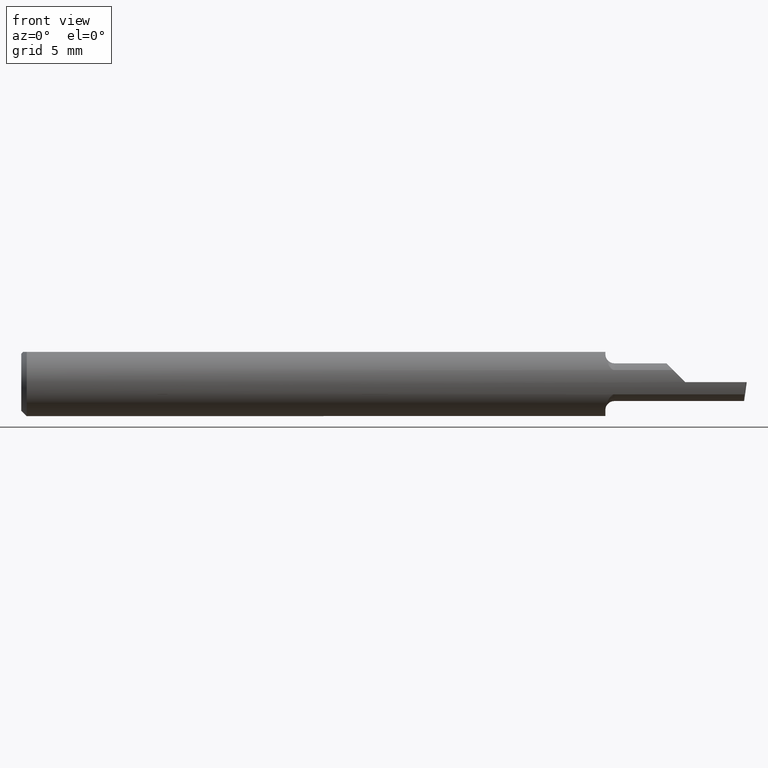
[diagram: clean part render]
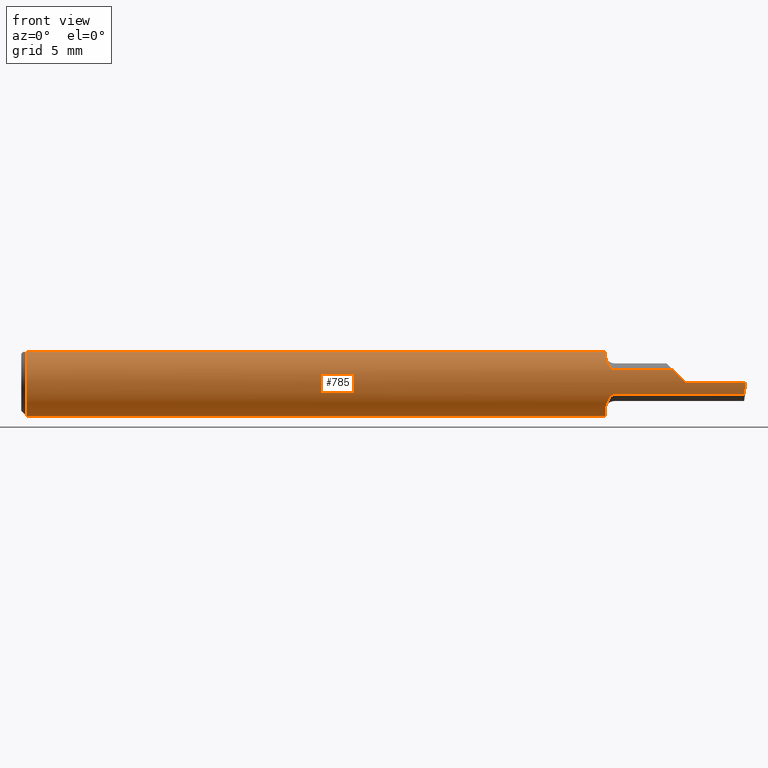
[diagram: same view with one face highlighted and labeled with its STEP entity id]
A machine part, front view. The second image highlights one B-rep face of the part: STEP entity #785.
In plain terms, the highlighted cylindrical surface (edge-blend (fillet) strip) has radius 2.3774 mm, axis along (-1, -0, -0).
Its self-contained STEP definition (entity closure, byte-faithful):
#1 = CARTESIAN_POINT ( 'NONE',  ( 1.829999999999999849, -0.09359807690332104524, 0.0006000000000000564344 ) ) ;
#2 = EDGE_CURVE ( 'NONE', #975, #944, #59, .T. ) ;
#7 = CARTESIAN_POINT ( 'NONE',  ( 1.996886856354181505, -0.09360000000000003040, 0.000000000000000000 ) ) ;
#27 = CARTESIAN_POINT ( 'NONE',  ( 1.635000000000000009, -0.08742352941176473324, 0.03343780054355112441 ) ) ;
#34 =( BOUNDED_CURVE ( )  B_SPLINE_CURVE ( 3, ( #1, #440, #1323, #551 ),
 .UNSPECIFIED., .F., .T. ) 
 B_SPLINE_CURVE_WITH_KNOTS ( ( 4, 4 ),
 ( 4.718799280696812204, 5.077701767404802169 ),
 .UNSPECIFIED. ) 
 CURVE ( )  GEOMETRIC_REPRESENTATION_ITEM ( )  RATIONAL_B_SPLINE_CURVE ( ( 1.000000000000000000, 0.9892945255447470609, 0.9892945255447470609, 1.000000000000000000 ) ) 
 REPRESENTATION_ITEM ( '' )  );
#50 = EDGE_CURVE ( 'NONE', #135, #1141, #1006, .T. ) ;
#53 = CARTESIAN_POINT ( 'NONE',  ( 1.632236034269168634, -0.08742352941176474712, 0.03343780054355113135 ) ) ;
#56 = ORIENTED_EDGE ( 'NONE', *, *, #50, .T. ) ;
#59 = LINE ( 'NONE', #507, #464 ) ;
#61 = CARTESIAN_POINT ( 'NONE',  ( 1.610000000000000098, -0.05354747899159666841, 0.07676996478861061735 ) ) ;
#68 = LINE ( 'NONE', #517, #499 ) ;
#70 = CARTESIAN_POINT ( 'NONE',  ( 1.829999999999999849, -0.09359807690332104524, 0.0006000000000000564344 ) ) ;
#85 = CARTESIAN_POINT ( 'NONE',  ( 0.01500000000000024925, 0.000000000000000000, 0.000000000000000000 ) ) ;
#90 = CARTESIAN_POINT ( 'NONE',  ( 1.619429831793493202, -0.08157196373575877069, 0.04612478859720783864 ) ) ;
#113 = DIRECTION ( 'NONE',  ( 1.000000000000000000, -0.000000000000000000, -0.000000000000000000 ) ) ;
#117 = VECTOR ( 'NONE', #284, 39.37007874015748143 ) ;
#125 = CARTESIAN_POINT ( 'NONE',  ( 1.797162199456448617, -0.08742352941176477488, 0.03343780054355105502 ) ) ;
#127 = CARTESIAN_POINT ( 'NONE',  ( 1.610000000000000098, 0.04209513035969836975, 0.08360000000000003539 ) ) ;
#135 = VERTEX_POINT ( 'NONE', #631 ) ;
#136 = ORIENTED_EDGE ( 'NONE', *, *, #925, .F. ) ;
#140 = EDGE_CURVE ( 'NONE', #1412, #1337, #68, .T. ) ;
#154 = VERTEX_POINT ( 'NONE', #917 ) ;
#171 = CARTESIAN_POINT ( 'NONE',  ( 1.617161191193798642, -0.07901114962905146644, -0.05043609314058525306 ) ) ;
#174 = CARTESIAN_POINT ( 'NONE',  ( 1.829999999999999849, -0.09360000000000001652, -3.414809992080329023E-17 ) ) ;
#176 = CIRCLE ( 'NONE', #558, 0.09360000000000001652 ) ;
#182 = CARTESIAN_POINT ( 'NONE',  ( 1.996886856354181505, -0.09360000000000003040, 0.000000000000000000 ) ) ;
#187 = ORIENTED_EDGE ( 'NONE', *, *, #514, .F. ) ;
#190 = CARTESIAN_POINT ( 'NONE',  ( 1.610000000000000098, -0.05354747899159666841, 0.07676996478861061735 ) ) ;
#210 = DIRECTION ( 'NONE',  ( 1.000000000000000000, -0.000000000000000000, -0.000000000000000000 ) ) ;
#216 = ORIENTED_EDGE ( 'NONE', *, *, #997, .T. ) ;
#248 = ORIENTED_EDGE ( 'NONE', *, *, #1284, .F. ) ;
#275 = LINE ( 'NONE', #726, #1181 ) ;
#280 = CARTESIAN_POINT ( 'NONE',  ( 1.613566054251871273, -0.07311372703649188232, -0.05865956167432130608 ) ) ;
#284 = DIRECTION ( 'NONE',  ( 1.000000000000000000, 0.000000000000000000, 0.000000000000000000 ) ) ;
#286 = VERTEX_POINT ( 'NONE', #127 ) ;
#289 = VERTEX_POINT ( 'NONE', #27 ) ;
#299 = CARTESIAN_POINT ( 'NONE',  ( 1.612220312075300699, -0.06967046548711446075, -0.06273118805966784728 ) ) ;
#320 = CARTESIAN_POINT ( 'NONE',  ( 2.000000000000000000, 0.04209513035969836975, 0.08360000000000003539 ) ) ;
#334 = DIRECTION ( 'NONE',  ( -1.000000000000000000, -0.000000000000000000, -0.000000000000000000 ) ) ;
#346 = CIRCLE ( 'NONE', #1373, 0.09360000000000001652 ) ;
#358 = CARTESIAN_POINT ( 'NONE',  ( 1.995479549016916820, -0.09360000000000001652, -0.01146159848531530176 ) ) ;
#369 = AXIS2_PLACEMENT_3D ( 'NONE', #781, #334, #865 ) ;
#375 = VERTEX_POINT ( 'NONE', #190 ) ;
#396 = CARTESIAN_POINT ( 'NONE',  ( 0.01499999999997156559, -0.04209513035984144974, 0.08360000000000003539 ) ) ;
#401 = CARTESIAN_POINT ( 'NONE',  ( 1.610000000000000098, -0.05354747899159666841, -0.07676996478861061735 ) ) ;
#429 = CARTESIAN_POINT ( 'NONE',  ( 1.610000000000000098, 0.000000000000000000, 0.000000000000000000 ) ) ;
#434 = LINE ( 'NONE', #320, #825 ) ;
#440 = CARTESIAN_POINT ( 'NONE',  ( 1.818741951567661275, -0.09352590844342437149, 0.01185804843233868346 ) ) ;
#464 = VECTOR ( 'NONE', #793, 39.37007874015748143 ) ;
#485 = CARTESIAN_POINT ( 'NONE',  ( 1.992944161884724785, -0.08742352941176471937, -0.03343780054355115910 ) ) ;
#499 = VECTOR ( 'NONE', #963, 39.37007874015748143 ) ;
#502 = DIRECTION ( 'NONE',  ( 0.000000000000000000, 0.000000000000000000, -1.000000000000000000 ) ) ;
#507 = CARTESIAN_POINT ( 'NONE',  ( 2.000000000000000000, -0.04209513035969836975, 0.08360000000000003539 ) ) ;
#514 = EDGE_CURVE ( 'NONE', #975, #375, #908, .T. ) ;
#517 = CARTESIAN_POINT ( 'NONE',  ( 2.000000000000000000, -0.09360000000000001652, -3.414809992080329023E-17 ) ) ;
#523 = CARTESIAN_POINT ( 'NONE',  ( 1.729999999999999760, -0.08742352941176473324, 0.03343780054355112441 ) ) ;
#530 = CARTESIAN_POINT ( 'NONE',  ( 1.623949903849913001, -0.08462672334538276497, 0.04005506264550477702 ) ) ;
#537 = ORIENTED_EDGE ( 'NONE', *, *, #1286, .F. ) ;
#551 = CARTESIAN_POINT ( 'NONE',  ( 1.797162199456448617, -0.08742352941176477488, 0.03343780054355105502 ) ) ;
#553 = ORIENTED_EDGE ( 'NONE', *, *, #716, .T. ) ;
#558 = AXIS2_PLACEMENT_3D ( 'NONE', #1154, #601, #502 ) ;
#571 = ORIENTED_EDGE ( 'NONE', *, *, #1123, .T. ) ;
#575 = CARTESIAN_POINT ( 'NONE',  ( 1.992944161884724785, -0.08742352941176471937, -0.03343780054355115910 ) ) ;
#590 = VERTEX_POINT ( 'NONE', #727 ) ;
#601 = DIRECTION ( 'NONE',  ( 1.000000000000000000, -0.000000000000000000, 0.000000000000000000 ) ) ;
#621 = CARTESIAN_POINT ( 'NONE',  ( 1.610000000000000320, -0.05801716370217431529, -0.07365233475194524204 ) ) ;
#625 = DIRECTION ( 'NONE',  ( 1.000000000000000000, 0.000000000000000000, 0.000000000000000000 ) ) ;
#626 = DIRECTION ( 'NONE',  ( 1.000000000000000000, 0.000000000000000000, 0.000000000000000000 ) ) ;
#631 = CARTESIAN_POINT ( 'NONE',  ( 1.610000000000000098, -0.05354747899159666841, -0.07676996478861061735 ) ) ;
#633 = CARTESIAN_POINT ( 'NONE',  ( 1.625627852521999817, -0.08551297072701787017, 0.03810160108796863815 ) ) ;
#644 = AXIS2_PLACEMENT_3D ( 'NONE', #429, #625, #1178 ) ;
#647 = ORIENTED_EDGE ( 'NONE', *, *, #842, .F. ) ;
#661 = DIRECTION ( 'NONE',  ( 0.000000000000000000, 0.000000000000000000, -1.000000000000000000 ) ) ;
#662 = FACE_OUTER_BOUND ( 'NONE', #674, .T. ) ;
#674 = EDGE_LOOP ( 'NONE', ( #647, #216, #1189, #136, #553, #248, #720, #187, #984, #1330, #1152, #571, #537, #56 ) ) ;
#676 = CARTESIAN_POINT ( 'NONE',  ( 1.610000000000000098, 0.000000000000000000, 0.000000000000000000 ) ) ;
#716 = EDGE_CURVE ( 'NONE', #1172, #1021, #34, .T. ) ;
#720 = ORIENTED_EDGE ( 'NONE', *, *, #1081, .T. ) ;
#726 = CARTESIAN_POINT ( 'NONE',  ( 1.729999999999999760, -0.08742352941176473324, -0.03343780054355112441 ) ) ;
#727 = CARTESIAN_POINT ( 'NONE',  ( 0.01500000000000024925, 0.000000000000000000, -0.09360000000000001652 ) ) ;
#733 = CARTESIAN_POINT ( 'NONE',  ( 1.635000000000000009, -0.08742352941176473324, -0.03343780054355112441 ) ) ;
#751 = CARTESIAN_POINT ( 'NONE',  ( 1.625624483698154821, -0.08550980671537414257, -0.03810828140653681195 ) ) ;
#753 = DIRECTION ( 'NONE',  ( 1.000000000000000000, 0.000000000000000000, 0.000000000000000000 ) ) ;
#762 = CARTESIAN_POINT ( 'NONE',  ( 1.617204805506959664, -0.07907369562023933152, 0.05034369310025201688 ) ) ;
#781 = CARTESIAN_POINT ( 'NONE',  ( 2.000000000000000000, 0.000000000000000000, 0.000000000000000000 ) ) ;
#783 = CARTESIAN_POINT ( 'NONE',  ( 1.619402697492216880, -0.08154729954719990015, -0.04616948980865710761 ) ) ;
#785 = ADVANCED_FACE ( 'NONE', ( #662 ), #887, .T. ) ;
#793 = DIRECTION ( 'NONE',  ( -1.000000000000000000, -0.000000000000000000, -0.000000000000000000 ) ) ;
#825 = VECTOR ( 'NONE', #753, 39.37007874015748143 ) ;
#835 = AXIS2_PLACEMENT_3D ( 'NONE', #676, #626, #1156 ) ;
#842 = EDGE_CURVE ( 'NONE', #881, #1141, #275, .T. ) ;
#865 = DIRECTION ( 'NONE',  ( 0.000000000000000000, 0.000000000000000000, 1.000000000000000000 ) ) ;
#881 = VERTEX_POINT ( 'NONE', #485 ) ;
#887 = CYLINDRICAL_SURFACE ( 'NONE', #369, 0.09360000000000001652 ) ;
#908 = CIRCLE ( 'NONE', #835, 0.09360000000000001652 ) ;
#917 = CARTESIAN_POINT ( 'NONE',  ( 0.01500000000000024925, 0.04209513035969833505, 0.08360000000000003539 ) ) ;
#925 = EDGE_CURVE ( 'NONE', #1172, #1337, #176, .T. ) ;
#944 = VERTEX_POINT ( 'NONE', #396 ) ;
#963 = DIRECTION ( 'NONE',  ( -1.000000000000000000, -0.000000000000000000, -0.000000000000000000 ) ) ;
#975 = VERTEX_POINT ( 'NONE', #1120 ) ;
#980 = CARTESIAN_POINT ( 'NONE',  ( 0.01500000000000024925, 0.000000000000000000, 0.000000000000000000 ) ) ;
#984 = ORIENTED_EDGE ( 'NONE', *, *, #2, .T. ) ;
#985 = CARTESIAN_POINT ( 'NONE',  ( 1.610000000000000320, -0.06246407471218875379, 0.07055058949855189110 ) ) ;
#997 = EDGE_CURVE ( 'NONE', #881, #1412, #1005, .T. ) ;
#1002 = DIRECTION ( 'NONE',  ( 0.000000000000000000, 0.000000000000000000, -1.000000000000000000 ) ) ;
#1005 =( BOUNDED_CURVE ( )  B_SPLINE_CURVE ( 3, ( #575, #1028, #358, #7 ),
 .UNSPECIFIED., .F., .T. ) 
 B_SPLINE_CURVE_WITH_KNOTS ( ( 4, 4 ),
 ( 0.9938327707236678243, 1.359145557743781429 ),
 .UNSPECIFIED. ) 
 CURVE ( )  GEOMETRIC_REPRESENTATION_ITEM ( )  RATIONAL_B_SPLINE_CURVE ( ( 1.000000000000000000, 0.9889097660947802071, 0.9889097660947802071, 1.000000000000000000 ) ) 
 REPRESENTATION_ITEM ( '' )  );
#1006 = B_SPLINE_CURVE_WITH_KNOTS ( 'NONE', 3,
 ( #401, #621, #1230, #299, #280, #171, #783, #1074, #751, #1066, #1192, #733 ),
 .UNSPECIFIED., .F., .F.,
 ( 4, 2, 2, 2, 2, 4 ),
 ( 0.000000000000000000, 0.0004093713679331851749, 0.0008187427358663703497, 0.001228114103799555525, 0.001432799787766148329, 0.001637485471732741133 ),
 .UNSPECIFIED. ) ;
#1019 = CIRCLE ( 'NONE', #644, 0.09360000000000001652 ) ;
#1021 = VERTEX_POINT ( 'NONE', #125 ) ;
#1028 = CARTESIAN_POINT ( 'NONE',  ( 1.994150578938070462, -0.09151808757482285395, -0.02273252925843581920 ) ) ;
#1062 = B_SPLINE_CURVE_WITH_KNOTS ( 'NONE', 3,
 ( #1096, #53, #1315, #633, #530, #90, #762, #1308, #985, #61 ),
 .UNSPECIFIED., .F., .F.,
 ( 4, 2, 2, 2, 4 ),
 ( 0.000000000000000000, 0.0002067288396526991659, 0.0004134576793053983319, 0.0008269153586108091321, 0.001653830717221636696 ),
 .UNSPECIFIED. ) ;
#1066 = CARTESIAN_POINT ( 'NONE',  ( 1.629697495724469647, -0.08690515311869799475, -0.03480894307036770663 ) ) ;
#1074 = CARTESIAN_POINT ( 'NONE',  ( 1.623923880239826367, -0.08461225782413581142, -0.04008593006360304523 ) ) ;
#1081 = EDGE_CURVE ( 'NONE', #289, #375, #1062, .T. ) ;
#1085 = CIRCLE ( 'NONE', #1371, 0.09360000000000001652 ) ;
#1096 = CARTESIAN_POINT ( 'NONE',  ( 1.635000000000000009, -0.08742352941176473324, 0.03343780054355112441 ) ) ;
#1120 = CARTESIAN_POINT ( 'NONE',  ( 1.610000000000000098, -0.04209513035975542827, 0.08359999999997128062 ) ) ;
#1123 = EDGE_CURVE ( 'NONE', #154, #286, #434, .T. ) ;
#1141 = VERTEX_POINT ( 'NONE', #1384 ) ;
#1152 = ORIENTED_EDGE ( 'NONE', *, *, #1253, .T. ) ;
#1154 = CARTESIAN_POINT ( 'NONE',  ( 1.829999999999999849, 0.000000000000000000, 0.000000000000000000 ) ) ;
#1156 = DIRECTION ( 'NONE',  ( 0.000000000000000000, 0.000000000000000000, -1.000000000000000000 ) ) ;
#1161 = DIRECTION ( 'NONE',  ( -1.000000000000000000, -0.000000000000000000, -0.000000000000000000 ) ) ;
#1172 = VERTEX_POINT ( 'NONE', #70 ) ;
#1178 = DIRECTION ( 'NONE',  ( 0.000000000000000000, 0.000000000000000000, -1.000000000000000000 ) ) ;
#1181 = VECTOR ( 'NONE', #1161, 39.37007874015748143 ) ;
#1189 = ORIENTED_EDGE ( 'NONE', *, *, #140, .T. ) ;
#1192 = CARTESIAN_POINT ( 'NONE',  ( 1.632235389444971707, -0.08742352941176470549, -0.03343780054355116604 ) ) ;
#1230 = CARTESIAN_POINT ( 'NONE',  ( 1.610447105357074138, -0.06212594682849113120, -0.07021070037559885846 ) ) ;
#1253 = EDGE_CURVE ( 'NONE', #590, #154, #1085, .T. ) ;
#1284 = EDGE_CURVE ( 'NONE', #289, #1021, #1397, .T. ) ;
#1286 = EDGE_CURVE ( 'NONE', #135, #286, #1019, .T. ) ;
#1308 = CARTESIAN_POINT ( 'NONE',  ( 1.611739921691912381, -0.07013601216566903163, 0.06282202554483264090 ) ) ;
#1315 = CARTESIAN_POINT ( 'NONE',  ( 1.629731236536170913, -0.08691468399048310478, 0.03478559867044076631 ) ) ;
#1323 = CARTESIAN_POINT ( 'NONE',  ( 1.807677568583746508, -0.09144545369103190824, 0.02292243141625315700 ) ) ;
#1330 = ORIENTED_EDGE ( 'NONE', *, *, #1414, .T. ) ;
#1337 = VERTEX_POINT ( 'NONE', #174 ) ;
#1371 = AXIS2_PLACEMENT_3D ( 'NONE', #980, #210, #661 ) ;
#1373 = AXIS2_PLACEMENT_3D ( 'NONE', #85, #113, #1002 ) ;
#1384 = CARTESIAN_POINT ( 'NONE',  ( 1.635000000000000009, -0.08742352941176473324, -0.03343780054355112441 ) ) ;
#1397 = LINE ( 'NONE', #523, #117 ) ;
#1412 = VERTEX_POINT ( 'NONE', #182 ) ;
#1414 = EDGE_CURVE ( 'NONE', #944, #590, #346, .T. ) ;